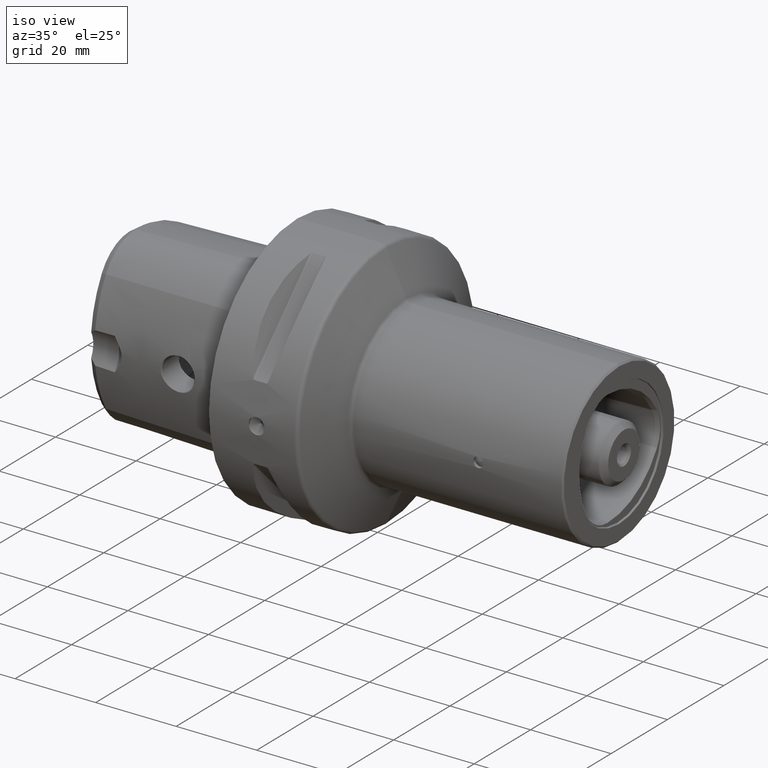
[diagram: clean part render]
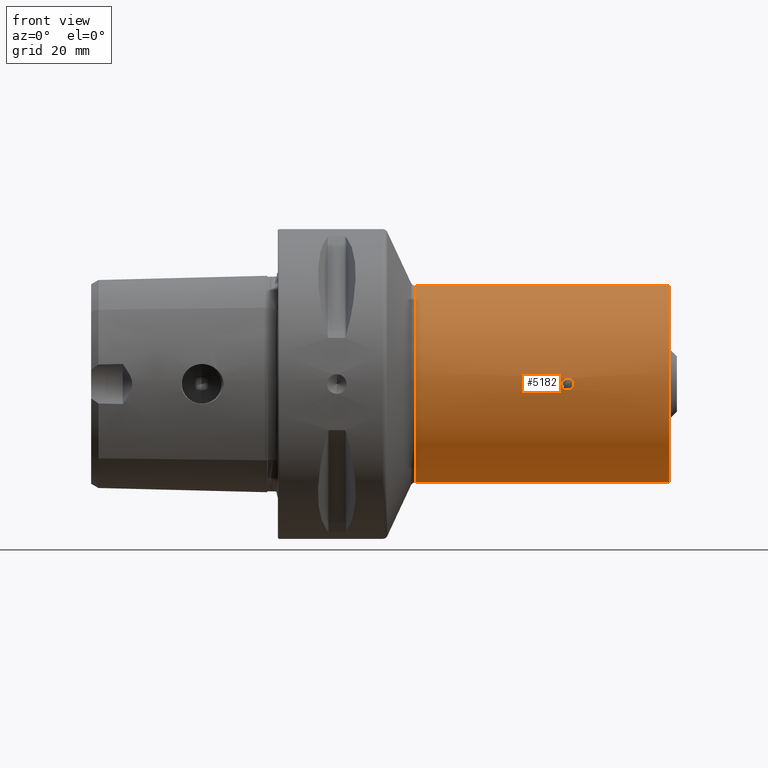
[diagram: tour spotlight — one face highlighted and labeled with its STEP entity id]
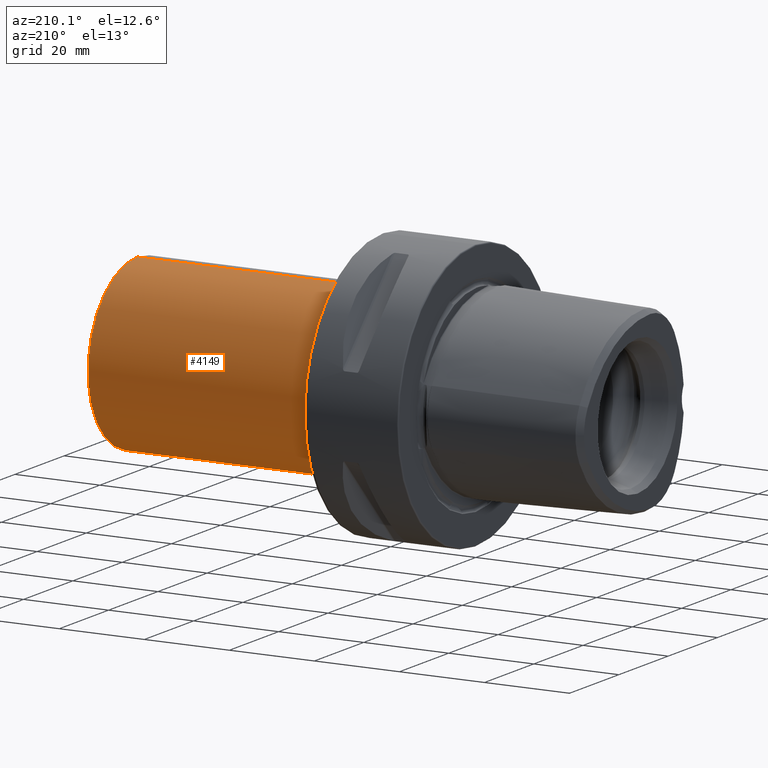
[diagram: tour spotlight — one face highlighted and labeled with its STEP entity id]
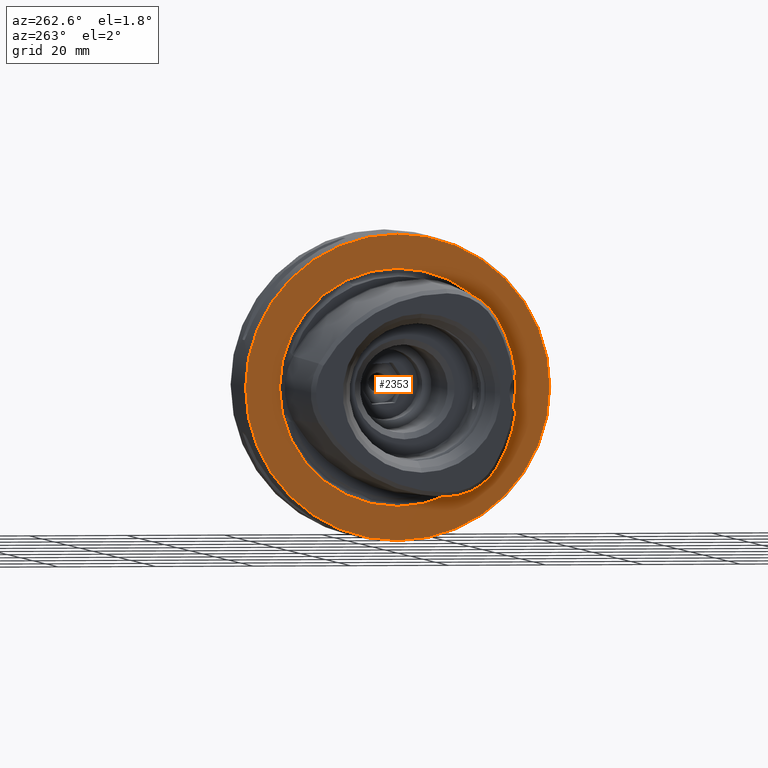
[diagram: tour spotlight — one face highlighted and labeled with its STEP entity id]
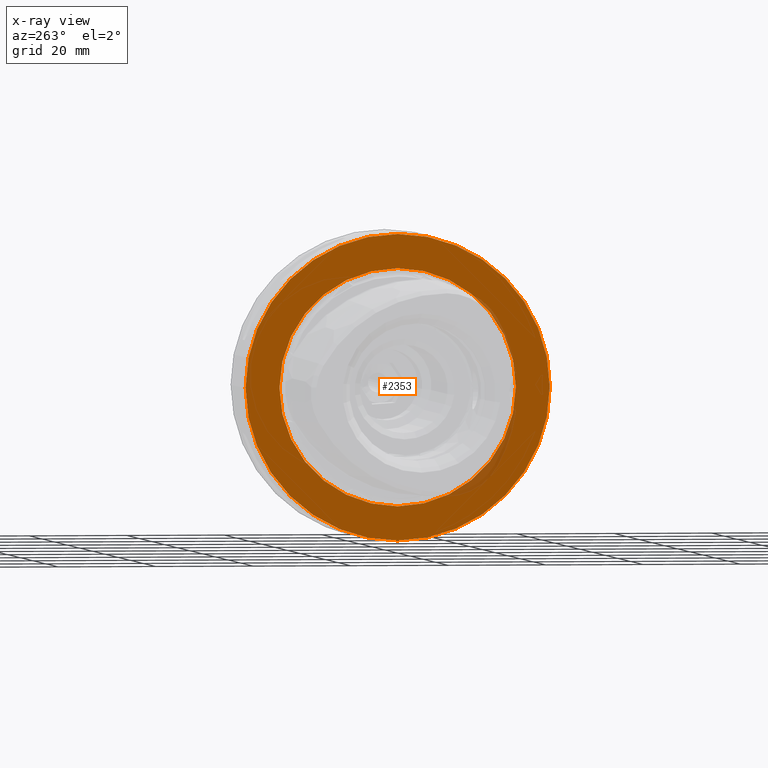
[diagram: x-ray of the same camera — body ghosted, this tour face saturated]
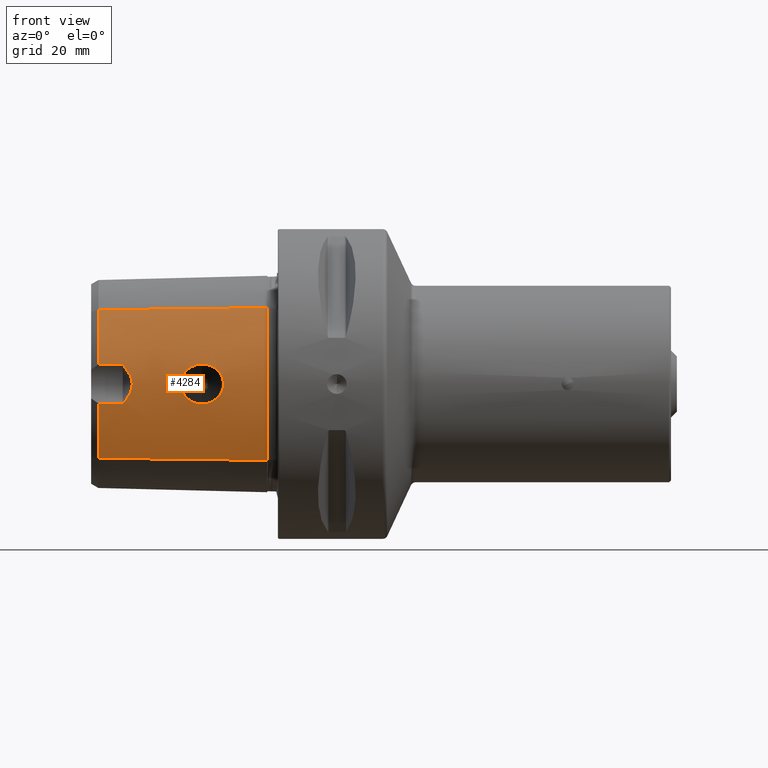
[diagram: tour spotlight — one face highlighted and labeled with its STEP entity id]
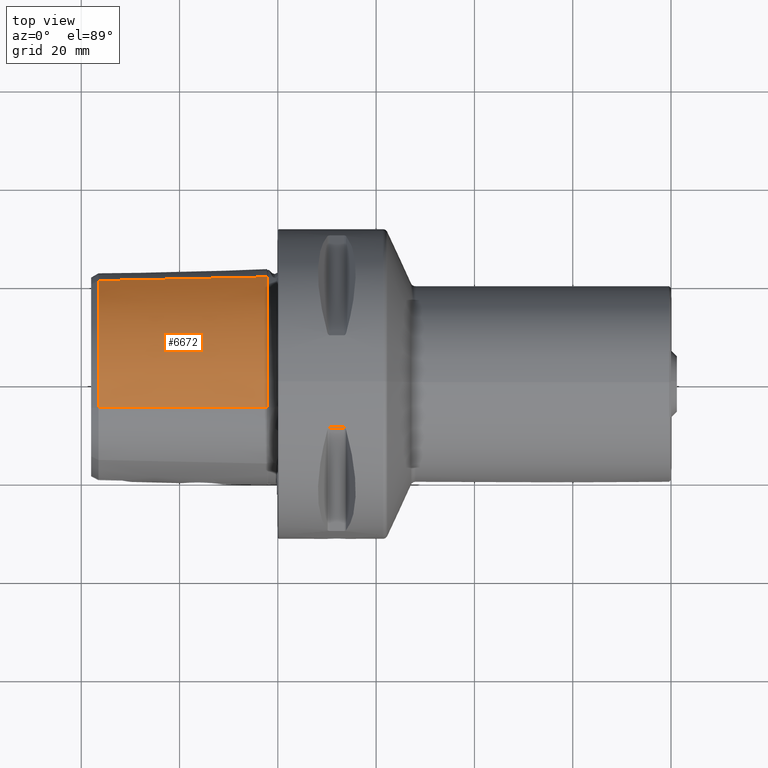
[diagram: tour spotlight — one face highlighted and labeled with its STEP entity id]
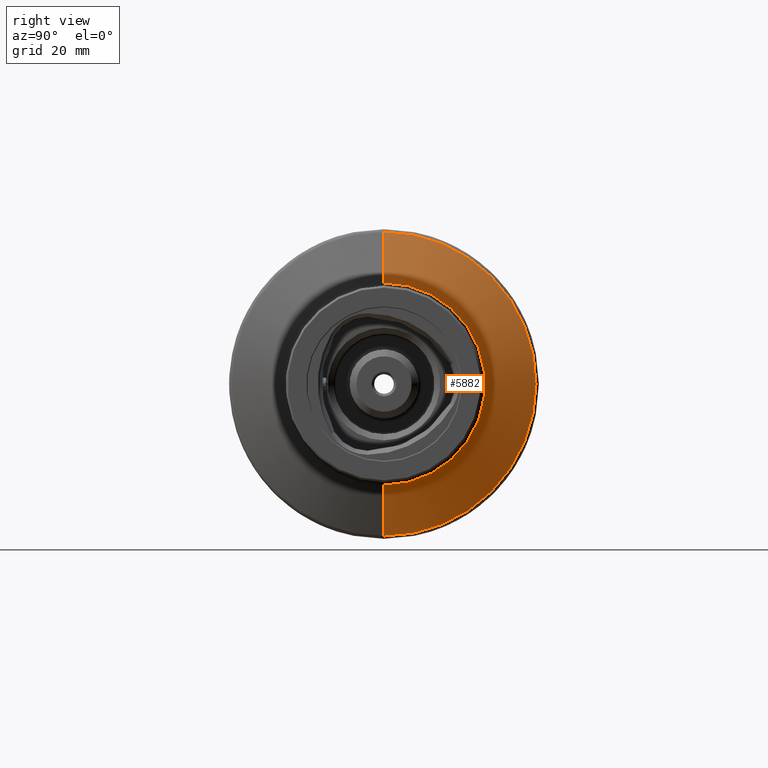
[diagram: tour spotlight — one face highlighted and labeled with its STEP entity id]
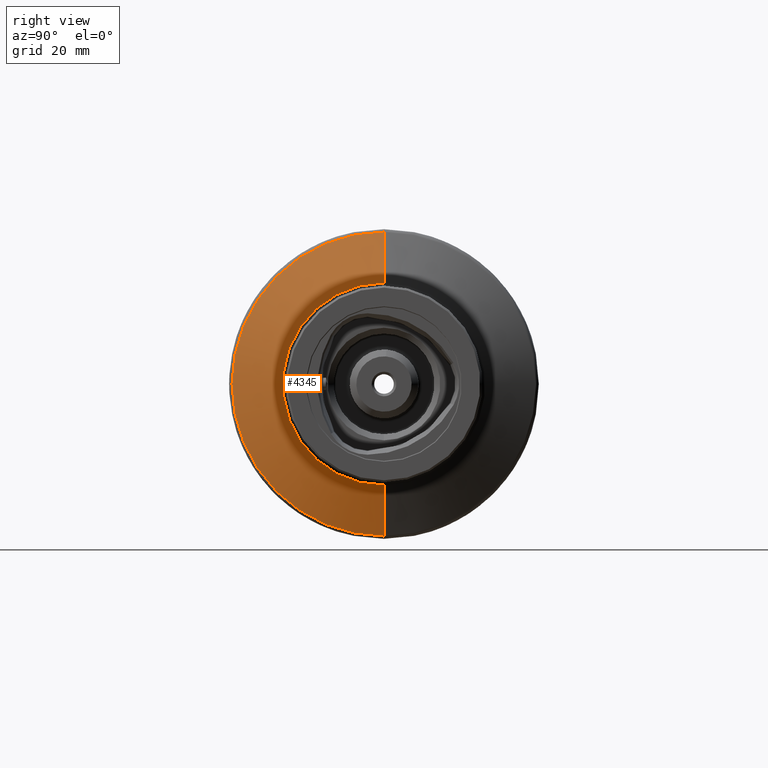
[diagram: tour spotlight — one face highlighted and labeled with its STEP entity id]
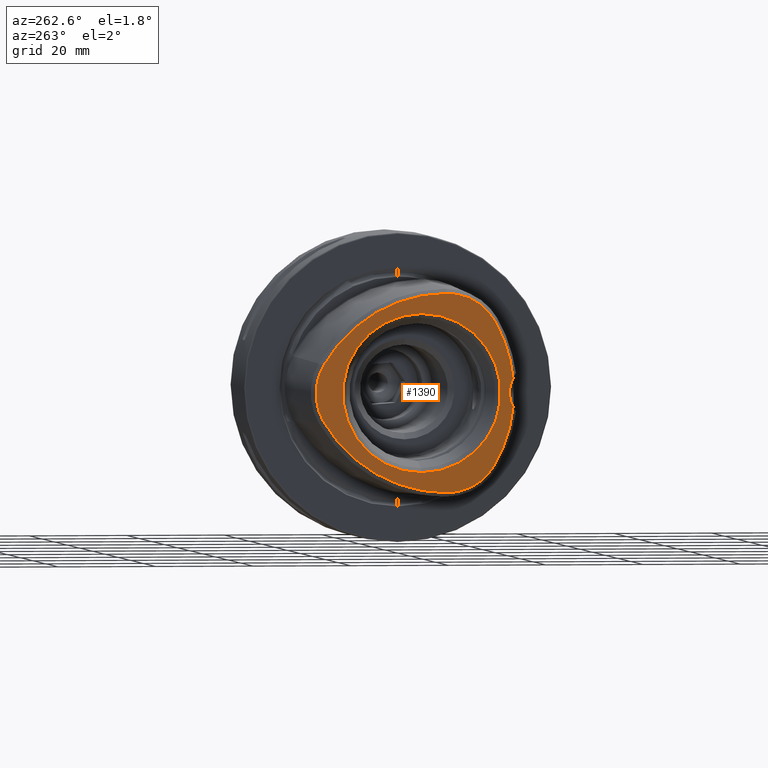
[diagram: tour spotlight — one face highlighted and labeled with its STEP entity id]
A machine part: a face-by-face anatomy tour. The part has 219 B-rep faces; the first image is the clean iso view, then the 8 largest visible faces are spotlighted one at a time (largest first), each with its STEP entity span.

Face 1 — front view, entity #5182. In plain terms, the highlighted cylindrical surface (partial cylindrical patch) has radius 20 mm, axis along (-1, -0, -0).
Definition (entity closure, byte-faithful):
#47 = CARTESIAN_POINT ( 'NONE',  ( 60.12375509256651900, -19.99248225017433000, -0.5535327915804774100 ) ) ;
#204 = FACE_OUTER_BOUND ( 'NONE', #2490, .T. ) ;
#206 = CARTESIAN_POINT ( 'NONE',  ( 58.67532878227127900, -19.96337885842806200, 1.209859882025466700 ) ) ;
#328 = CARTESIAN_POINT ( 'NONE',  ( 58.99999999999943200, -19.96089927833865100, 1.250000000007755800 ) ) ;
#508 = CARTESIAN_POINT ( 'NONE',  ( 60.08540315932160800, -19.99033657721186300, -0.6253492309727893800 ) ) ;
#710 = LINE ( 'NONE', #787, #1826 ) ;
#720 = CARTESIAN_POINT ( 'NONE',  ( 58.23123527712633800, -19.97536571469600700, -0.9990446147902674000 ) ) ;
#787 = CARTESIAN_POINT ( 'NONE',  ( 0.0000000000000000000, 2.449293598294706100E-015, -19.99999999999999600 ) ) ;
#1032 = CARTESIAN_POINT ( 'NONE',  ( 59.94213247239210300, -19.98303778933392400, -0.8255527861939828700 ) ) ;
#1103 = CARTESIAN_POINT ( 'NONE',  ( 59.62846146707666900, -19.97022400019489300, 1.092722690422757600 ) ) ;
#1228 = CYLINDRICAL_SURFACE ( 'NONE', #3424, 19.99999999999999600 ) ;
#1232 = EDGE_CURVE ( 'NONE', #4516, #3826, #3072, .T. ) ;
#1369 = CARTESIAN_POINT ( 'NONE',  ( 57.99925280305052400, -19.98563003330898300, 0.7669706926384751700 ) ) ;
#1446 = EDGE_CURVE ( 'NONE', #4516, #3830, #710, .T. ) ;
#1592 = DIRECTION ( 'NONE',  ( -1.000000000000000000, -0.0000000000000000000, -0.0000000000000000000 ) ) ;
#1651 = CARTESIAN_POINT ( 'NONE',  ( 59.99857963828355900, -19.98552951174066900, 0.7693480334859547100 ) ) ;
#1680 = CARTESIAN_POINT ( 'NONE',  ( 60.24986526891007100, -19.99999157930965800, 0.1659701774398715800 ) ) ;
#1736 = CARTESIAN_POINT ( 'NONE',  ( 59.00000000000000700, -19.96089927833913800, -1.250000000000001100 ) ) ;
#1826 = VECTOR ( 'NONE', #4588, 1000.000000000000000 ) ;
#1850 = CARTESIAN_POINT ( 'NONE',  ( 58.23260898155095300, -19.97530479995977300, 1.000424919907668200 ) ) ;
#1866 = CARTESIAN_POINT ( 'NONE',  ( 58.37019423085150300, -19.97025852652370400, 1.092118851443722800 ) ) ;
#1890 = CARTESIAN_POINT ( 'NONE',  ( 59.00000000000000700, -19.96089927833913800, -1.250000000000001100 ) ) ;
#2117 = CARTESIAN_POINT ( 'NONE',  ( 59.32929036433569100, -19.96304944363890100, -1.216787636646141900 ) ) ;
#2201 = CARTESIAN_POINT ( 'NONE',  ( 60.21717215561975000, -19.99787685070053600, 0.3283102293013609500 ) ) ;
#2234 = ORIENTED_EDGE ( 'NONE', *, *, #6356, .T. ) ;
#2289 = DIRECTION ( 'NONE',  ( -1.000000000000000000, -0.0000000000000000000, -0.0000000000000000000 ) ) ;
#2351 = ORIENTED_EDGE ( 'NONE', *, *, #4124, .T. ) ;
#2448 = CARTESIAN_POINT ( 'NONE',  ( 58.91840854741119000, -19.96089927833914100, 1.249999999999933400 ) ) ;
#2490 = EDGE_LOOP ( 'NONE', ( #3812, #4095, #2351, #5850 ) ) ;
#2552 = CIRCLE ( 'NONE', #5967, 19.99999999999999300 ) ;
#2649 = CARTESIAN_POINT ( 'NONE',  ( 79.60000000000000900, 0.0000000000000000000, 0.0000000000000000000 ) ) ;
#2651 = CARTESIAN_POINT ( 'NONE',  ( 59.00000000000000700, -19.96089927833913800, -1.250000000000001100 ) ) ;
#2661 = ORIENTED_EDGE ( 'NONE', *, *, #5473, .T. ) ;
#2677 = DIRECTION ( 'NONE',  ( 0.0000000000000000000, 0.0000000000000000000, 1.000000000000000000 ) ) ;
#2737 = CARTESIAN_POINT ( 'NONE',  ( 79.60000000000000900, 0.0000000000000000000, 19.99999999999999600 ) ) ;
#2847 = CARTESIAN_POINT ( 'NONE',  ( 27.99960832958999600, 0.0000000000000000000, 19.99999999999999300 ) ) ;
#2890 = CARTESIAN_POINT ( 'NONE',  ( 58.83554011313124500, -19.96141605948584900, 1.241823368827967800 ) ) ;
#2921 = CARTESIAN_POINT ( 'NONE',  ( 58.83477585713009700, -19.96089927833914100, -1.250000000000001300 ) ) ;
#2960 = VERTEX_POINT ( 'NONE', #1736 ) ;
#2961 = CARTESIAN_POINT ( 'NONE',  ( 58.00067265892235500, -19.98556707655159300, -0.7683971673888320100 ) ) ;
#3072 = CIRCLE ( 'NONE', #6838, 19.99999999999999600 ) ;
#3195 = CARTESIAN_POINT ( 'NONE',  ( 59.99486925566792200, -19.98562536644331200, -0.7611812156578199300 ) ) ;
#3273 = CARTESIAN_POINT ( 'NONE',  ( 60.21777831161672600, -19.99791409317756300, -0.3262088617008540000 ) ) ;
#3297 = CARTESIAN_POINT ( 'NONE',  ( 59.76795079918389300, -19.97533421499199200, 0.9996545706673102300 ) ) ;
#3424 = AXIS2_PLACEMENT_3D ( 'NONE', #3436, #2289, #6131 ) ;
#3436 = CARTESIAN_POINT ( 'NONE',  ( 0.0000000000000000000, 0.0000000000000000000, 0.0000000000000000000 ) ) ;
#3487 = B_SPLINE_CURVE_WITH_KNOTS ( 'NONE', 3,
 ( #4273, #6504, #5429, #1103, #3297, #1651, #4920, #2201, #1680, #5968, #3273, #47, #508, #3195, #1032, #4820, #5356, #2117, #5893, #2651 ),
 .UNSPECIFIED., .F., .F.,
 ( 4, 2, 2, 2, 2, 2, 2, 2, 2, 4 ),
 ( 0.003909022310767963300, 0.004397538130862198100, 0.004886053950956433000, 0.005374569771050666900, 0.005863085591144902600, 0.006351601411239136600, 0.006595859321286258800, 0.006840117231333379300, 0.007328633051427607200, 0.007817148871521835100 ),
 .UNSPECIFIED. ) ;
#3508 = CARTESIAN_POINT ( 'NONE',  ( 57.90758992275761600, -19.99067158763282800, 0.6292653796629638100 ) ) ;
#3667 = VECTOR ( 'NONE', #4550, 1000.000000000000000 ) ;
#3812 = ORIENTED_EDGE ( 'NONE', *, *, #1446, .F. ) ;
#3826 = VERTEX_POINT ( 'NONE', #2737 ) ;
#3828 = CARTESIAN_POINT ( 'NONE',  ( 79.60000000000000900, 2.449293598294706100E-015, -19.99999999999999600 ) ) ;
#3830 = VERTEX_POINT ( 'NONE', #5439 ) ;
#4095 = ORIENTED_EDGE ( 'NONE', *, *, #1232, .T. ) ;
#4124 = EDGE_CURVE ( 'NONE', #3826, #5365, #5457, .T. ) ;
#4273 = CARTESIAN_POINT ( 'NONE',  ( 58.99999999999943200, -19.96089927833865100, 1.250000000007755800 ) ) ;
#4516 = VERTEX_POINT ( 'NONE', #3828 ) ;
#4550 = DIRECTION ( 'NONE',  ( -1.000000000000000000, -0.0000000000000000000, -0.0000000000000000000 ) ) ;
#4571 = CARTESIAN_POINT ( 'NONE',  ( 57.78288467261293000, -19.99787481589258000, -0.3280916135973757100 ) ) ;
#4588 = DIRECTION ( 'NONE',  ( -1.000000000000000000, -0.0000000000000000000, -0.0000000000000000000 ) ) ;
#4609 = CARTESIAN_POINT ( 'NONE',  ( 57.78233271736962700, -19.99790749950899700, 0.3265288405556772700 ) ) ;
#4745 = VERTEX_POINT ( 'NONE', #328 ) ;
#4798 = DIRECTION ( 'NONE',  ( 0.0000000000000000000, 0.0000000000000000000, 1.000000000000000000 ) ) ;
#4820 = CARTESIAN_POINT ( 'NONE',  ( 59.76925297548203300, -19.97538467509286500, -0.9986760500908401500 ) ) ;
#4846 = CARTESIAN_POINT ( 'NONE',  ( 27.99960832958999600, 0.0000000000000000000, 0.0000000000000000000 ) ) ;
#4920 = CARTESIAN_POINT ( 'NONE',  ( 60.09159089690351900, -19.99062633249820900, 0.6306544036770841400 ) ) ;
#5072 = CARTESIAN_POINT ( 'NONE',  ( 57.75005841096687200, -19.99999634931479900, -0.1635501872876701000 ) ) ;
#5182 = ADVANCED_FACE ( 'NONE', ( #204, #5936 ), #1228, .T. ) ;
#5356 = CARTESIAN_POINT ( 'NONE',  ( 59.62997024114626000, -19.97027224275765500, -1.091852458901545500 ) ) ;
#5365 = VERTEX_POINT ( 'NONE', #2847 ) ;
#5429 = CARTESIAN_POINT ( 'NONE',  ( 59.32759492521626000, -19.96302084448612400, 1.217246178362235500 ) ) ;
#5439 = CARTESIAN_POINT ( 'NONE',  ( 27.99960832958999600, 2.449293598294705700E-015, -19.99999999999999300 ) ) ;
#5457 = LINE ( 'NONE', #6086, #3667 ) ;
#5473 = EDGE_CURVE ( 'NONE', #2960, #4745, #5695, .T. ) ;
#5625 = CARTESIAN_POINT ( 'NONE',  ( 58.99999999999943200, -19.96089927833865100, 1.250000000007755800 ) ) ;
#5652 = CARTESIAN_POINT ( 'NONE',  ( 58.36988647904148300, -19.97026889777759400, -1.091930598280378000 ) ) ;
#5695 = B_SPLINE_CURVE_WITH_KNOTS ( 'NONE', 3,
 ( #1890, #2921, #6669, #5652, #720, #2961, #6748, #4571, #5072, #6722, #4609, #3508, #1369, #1850, #1866, #6181, #206, #2890, #2448, #5625 ),
 .UNSPECIFIED., .F., .F.,
 ( 4, 2, 2, 2, 2, 2, 2, 2, 2, 4 ),
 ( 7.023086426956682200E-018, 0.0004886277888460040800, 0.0009772555776920010100, 0.001465883366537997900, 0.001954511155383995100, 0.002443138944229992000, 0.002931766733075988100, 0.003420394521921985400, 0.003664708416344974100, 0.003909022310767963300 ),
 .UNSPECIFIED. ) ;
#5850 = ORIENTED_EDGE ( 'NONE', *, *, #6949, .F. ) ;
#5893 = CARTESIAN_POINT ( 'NONE',  ( 59.16518628186103300, -19.96089927833912700, -1.250000000000000700 ) ) ;
#5936 = FACE_BOUND ( 'NONE', #6503, .T. ) ;
#5967 = AXIS2_PLACEMENT_3D ( 'NONE', #4846, #6431, #2677 ) ;
#5968 = CARTESIAN_POINT ( 'NONE',  ( 60.25013390228409100, -20.00000836888999000, -0.1639344887051899200 ) ) ;
#6086 = CARTESIAN_POINT ( 'NONE',  ( 0.0000000000000000000, 0.0000000000000000000, 19.99999999999999600 ) ) ;
#6131 = DIRECTION ( 'NONE',  ( 0.0000000000000000000, 0.0000000000000000000, 1.000000000000000000 ) ) ;
#6181 = CARTESIAN_POINT ( 'NONE',  ( 58.59739773216578800, -19.96481545528033100, 1.186225584392625900 ) ) ;
#6356 = EDGE_CURVE ( 'NONE', #4745, #2960, #3487, .T. ) ;
#6431 = DIRECTION ( 'NONE',  ( -1.000000000000000000, -0.0000000000000000000, -0.0000000000000000000 ) ) ;
#6503 = EDGE_LOOP ( 'NONE', ( #2661, #2234 ) ) ;
#6504 = CARTESIAN_POINT ( 'NONE',  ( 59.16314551191398900, -19.96089927833912400, 1.250000000000136800 ) ) ;
#6669 = CARTESIAN_POINT ( 'NONE',  ( 58.67264958014347800, -19.96300967032848600, -1.217455207954464700 ) ) ;
#6722 = CARTESIAN_POINT ( 'NONE',  ( 57.74994174890961300, -20.00000364069292000, 0.1626561054413699900 ) ) ;
#6748 = CARTESIAN_POINT ( 'NONE',  ( 57.90755269649829300, -19.99067453946660300, -0.6289457179640085500 ) ) ;
#6838 = AXIS2_PLACEMENT_3D ( 'NONE', #2649, #1592, #4798 ) ;
#6949 = EDGE_CURVE ( 'NONE', #3830, #5365, #2552, .T. ) ;

Face 2 — auxiliary view, entity #4149. In plain terms, the highlighted cylindrical surface (partial cylindrical patch) has radius 20 mm, axis along (-1, -0, -0).
Definition (entity closure, byte-faithful):
#311 = AXIS2_PLACEMENT_3D ( 'NONE', #3275, #1105, #3175 ) ;
#357 = DIRECTION ( 'NONE',  ( 0.0000000000000000000, 0.0000000000000000000, 1.000000000000000000 ) ) ;
#441 = DIRECTION ( 'NONE',  ( -1.000000000000000000, -0.0000000000000000000, -0.0000000000000000000 ) ) ;
#611 = DIRECTION ( 'NONE',  ( -1.000000000000000000, -0.0000000000000000000, -0.0000000000000000000 ) ) ;
#710 = LINE ( 'NONE', #787, #1826 ) ;
#787 = CARTESIAN_POINT ( 'NONE',  ( 0.0000000000000000000, 2.449293598294706100E-015, -19.99999999999999600 ) ) ;
#911 = DIRECTION ( 'NONE',  ( 0.0000000000000000000, 0.0000000000000000000, 1.000000000000000000 ) ) ;
#1105 = DIRECTION ( 'NONE',  ( -1.000000000000000000, -0.0000000000000000000, -0.0000000000000000000 ) ) ;
#1128 = CIRCLE ( 'NONE', #311, 19.99999999999999600 ) ;
#1160 = ORIENTED_EDGE ( 'NONE', *, *, #6868, .F. ) ;
#1446 = EDGE_CURVE ( 'NONE', #4516, #3830, #710, .T. ) ;
#1826 = VECTOR ( 'NONE', #4588, 1000.000000000000000 ) ;
#1942 = ORIENTED_EDGE ( 'NONE', *, *, #6920, .T. ) ;
#2005 = CARTESIAN_POINT ( 'NONE',  ( 27.99960832958999600, 0.0000000000000000000, 0.0000000000000000000 ) ) ;
#2249 = ORIENTED_EDGE ( 'NONE', *, *, #1446, .T. ) ;
#2498 = CYLINDRICAL_SURFACE ( 'NONE', #2866, 19.99999999999999600 ) ;
#2737 = CARTESIAN_POINT ( 'NONE',  ( 79.60000000000000900, 0.0000000000000000000, 19.99999999999999600 ) ) ;
#2847 = CARTESIAN_POINT ( 'NONE',  ( 27.99960832958999600, 0.0000000000000000000, 19.99999999999999300 ) ) ;
#2866 = AXIS2_PLACEMENT_3D ( 'NONE', #4736, #611, #357 ) ;
#3175 = DIRECTION ( 'NONE',  ( 0.0000000000000000000, 0.0000000000000000000, 1.000000000000000000 ) ) ;
#3275 = CARTESIAN_POINT ( 'NONE',  ( 79.60000000000000900, 0.0000000000000000000, 0.0000000000000000000 ) ) ;
#3415 = EDGE_LOOP ( 'NONE', ( #1942, #2249, #1160, #5504 ) ) ;
#3434 = AXIS2_PLACEMENT_3D ( 'NONE', #2005, #441, #911 ) ;
#3667 = VECTOR ( 'NONE', #4550, 1000.000000000000000 ) ;
#3826 = VERTEX_POINT ( 'NONE', #2737 ) ;
#3828 = CARTESIAN_POINT ( 'NONE',  ( 79.60000000000000900, 2.449293598294706100E-015, -19.99999999999999600 ) ) ;
#3830 = VERTEX_POINT ( 'NONE', #5439 ) ;
#4124 = EDGE_CURVE ( 'NONE', #3826, #5365, #5457, .T. ) ;
#4149 = ADVANCED_FACE ( 'NONE', ( #6289 ), #2498, .T. ) ;
#4516 = VERTEX_POINT ( 'NONE', #3828 ) ;
#4550 = DIRECTION ( 'NONE',  ( -1.000000000000000000, -0.0000000000000000000, -0.0000000000000000000 ) ) ;
#4588 = DIRECTION ( 'NONE',  ( -1.000000000000000000, -0.0000000000000000000, -0.0000000000000000000 ) ) ;
#4736 = CARTESIAN_POINT ( 'NONE',  ( 0.0000000000000000000, 0.0000000000000000000, 0.0000000000000000000 ) ) ;
#5365 = VERTEX_POINT ( 'NONE', #2847 ) ;
#5439 = CARTESIAN_POINT ( 'NONE',  ( 27.99960832958999600, 2.449293598294705700E-015, -19.99999999999999300 ) ) ;
#5457 = LINE ( 'NONE', #6086, #3667 ) ;
#5504 = ORIENTED_EDGE ( 'NONE', *, *, #4124, .F. ) ;
#6086 = CARTESIAN_POINT ( 'NONE',  ( 0.0000000000000000000, 0.0000000000000000000, 19.99999999999999600 ) ) ;
#6114 = CIRCLE ( 'NONE', #3434, 19.99999999999999300 ) ;
#6289 = FACE_OUTER_BOUND ( 'NONE', #3415, .T. ) ;
#6868 = EDGE_CURVE ( 'NONE', #5365, #3830, #6114, .T. ) ;
#6920 = EDGE_CURVE ( 'NONE', #3826, #4516, #1128, .T. ) ;

Face 3 — auxiliary view, entity #2353. An x-ray twin of the same camera follows (body ghosted, this face saturated) — the face is partly hidden behind the body. In plain terms, the highlighted planar face has unit normal (1, 0, 0).
Definition (entity closure, byte-faithful):
#156 = EDGE_CURVE ( 'NONE', #6552, #3096, #6734, .T. ) ;
#503 = AXIS2_PLACEMENT_3D ( 'NONE', #3226, #5337, #4942 ) ;
#647 = DIRECTION ( 'NONE',  ( 0.0000000000000000000, 0.0000000000000000000, -1.000000000000000000 ) ) ;
#761 = CARTESIAN_POINT ( 'NONE',  ( 0.0000000000000000000, 2.969768487932331700E-015, -24.25000000000000000 ) ) ;
#792 = AXIS2_PLACEMENT_3D ( 'NONE', #3977, #2303, #2835 ) ;
#855 = VERTEX_POINT ( 'NONE', #1470 ) ;
#1041 = EDGE_LOOP ( 'NONE', ( #1518, #1974 ) ) ;
#1279 = EDGE_LOOP ( 'NONE', ( #4605, #4696 ) ) ;
#1295 = AXIS2_PLACEMENT_3D ( 'NONE', #4410, #6182, #2945 ) ;
#1470 = CARTESIAN_POINT ( 'NONE',  ( 0.0000000000000000000, 0.0000000000000000000, 24.25000000000000000 ) ) ;
#1499 = VERTEX_POINT ( 'NONE', #761 ) ;
#1518 = ORIENTED_EDGE ( 'NONE', *, *, #4663, .T. ) ;
#1929 = EDGE_CURVE ( 'NONE', #855, #1499, #5904, .T. ) ;
#1974 = ORIENTED_EDGE ( 'NONE', *, *, #156, .T. ) ;
#2303 = DIRECTION ( 'NONE',  ( -1.000000000000000000, -0.0000000000000000000, -0.0000000000000000000 ) ) ;
#2353 = ADVANCED_FACE ( 'NONE', ( #6984, #4482 ), #5985, .F. ) ;
#2835 = DIRECTION ( 'NONE',  ( 0.0000000000000000000, 0.0000000000000000000, 1.000000000000000000 ) ) ;
#2945 = DIRECTION ( 'NONE',  ( 0.0000000000000000000, 0.0000000000000000000, 1.000000000000000000 ) ) ;
#3096 = VERTEX_POINT ( 'NONE', #6247 ) ;
#3120 = AXIS2_PLACEMENT_3D ( 'NONE', #3760, #3902, #647 ) ;
#3226 = CARTESIAN_POINT ( 'NONE',  ( 0.0000000000000000000, 0.0000000000000000000, 0.0000000000000000000 ) ) ;
#3760 = CARTESIAN_POINT ( 'NONE',  ( 0.0000000000000000000, 24.25000000000000000, 0.0000000000000000000 ) ) ;
#3902 = DIRECTION ( 'NONE',  ( 1.000000000000000000, 0.0000000000000000000, 0.0000000000000000000 ) ) ;
#3977 = CARTESIAN_POINT ( 'NONE',  ( 0.0000000000000000000, 0.0000000000000000000, 0.0000000000000000000 ) ) ;
#4021 = CIRCLE ( 'NONE', #792, 31.19999999999999900 ) ;
#4151 = CARTESIAN_POINT ( 'NONE',  ( 0.0000000000000000000, 0.0000000000000000000, 0.0000000000000000000 ) ) ;
#4392 = CARTESIAN_POINT ( 'NONE',  ( 0.0000000000000000000, 3.839267715326952300E-015, -31.19999999999999900 ) ) ;
#4410 = CARTESIAN_POINT ( 'NONE',  ( 0.0000000000000000000, 0.0000000000000000000, 0.0000000000000000000 ) ) ;
#4482 = FACE_OUTER_BOUND ( 'NONE', #1041, .T. ) ;
#4605 = ORIENTED_EDGE ( 'NONE', *, *, #1929, .F. ) ;
#4663 = EDGE_CURVE ( 'NONE', #3096, #6552, #4021, .T. ) ;
#4696 = ORIENTED_EDGE ( 'NONE', *, *, #6799, .F. ) ;
#4942 = DIRECTION ( 'NONE',  ( 0.0000000000000000000, 0.0000000000000000000, 1.000000000000000000 ) ) ;
#5242 = DIRECTION ( 'NONE',  ( -1.000000000000000000, -0.0000000000000000000, -0.0000000000000000000 ) ) ;
#5337 = DIRECTION ( 'NONE',  ( -1.000000000000000000, -0.0000000000000000000, -0.0000000000000000000 ) ) ;
#5904 = CIRCLE ( 'NONE', #1295, 24.25000000000000000 ) ;
#5985 = PLANE ( 'NONE',  #3120 ) ;
#6101 = AXIS2_PLACEMENT_3D ( 'NONE', #4151, #5242, #6909 ) ;
#6182 = DIRECTION ( 'NONE',  ( -1.000000000000000000, -0.0000000000000000000, -0.0000000000000000000 ) ) ;
#6247 = CARTESIAN_POINT ( 'NONE',  ( 0.0000000000000000000, 0.0000000000000000000, 31.19999999999999900 ) ) ;
#6533 = CIRCLE ( 'NONE', #6101, 24.25000000000000000 ) ;
#6552 = VERTEX_POINT ( 'NONE', #4392 ) ;
#6734 = CIRCLE ( 'NONE', #503, 31.19999999999999900 ) ;
#6799 = EDGE_CURVE ( 'NONE', #1499, #855, #6533, .T. ) ;
#6909 = DIRECTION ( 'NONE',  ( 0.0000000000000000000, 0.0000000000000000000, 1.000000000000000000 ) ) ;
#6984 = FACE_BOUND ( 'NONE', #1279, .T. ) ;

Face 4 — front view, entity #4284. In plain terms, the highlighted conical surface has half-angle 1.439 deg.
Definition (entity closure, byte-faithful):
#17 = VERTEX_POINT ( 'NONE', #320 ) ;
#137 = CARTESIAN_POINT ( 'NONE',  ( -16.03990755891391700, -20.00671868468379000, 4.031911298617750100 ) ) ;
#160 = EDGE_CURVE ( 'NONE', #337, #930, #305, .T. ) ;
#258 = ORIENTED_EDGE ( 'NONE', *, *, #322, .T. ) ;
#266 = CARTESIAN_POINT ( 'NONE',  ( -15.50000000000000000, -20.01558181074209100, -4.067825830440962200 ) ) ;
#280 = CARTESIAN_POINT ( 'NONE',  ( -12.85183713305453800, -20.17484076368777600, 3.306449771520420200 ) ) ;
#284 = EDGE_CURVE ( 'NONE', #1143, #3733, #5900, .T. ) ;
#305 = CIRCLE ( 'NONE', #368, 30.20810565747711600 ) ;
#308 = CARTESIAN_POINT ( 'NONE',  ( -11.20220236434483100, -20.37548965978136200, 1.101072521542447700 ) ) ;
#320 = CARTESIAN_POINT ( 'NONE',  ( -2.200000000000000200, -16.45752937597906000, -15.53492052287963300 ) ) ;
#322 = EDGE_CURVE ( 'NONE', #5141, #17, #5381, .T. ) ;
#327 = CARTESIAN_POINT ( 'NONE',  ( -13.33235956089440300, -20.13091851112767500, 3.588497538188175200 ) ) ;
#337 = VERTEX_POINT ( 'NONE', #4715 ) ;
#351 = CARTESIAN_POINT ( 'NONE',  ( -36.50000000000000000, -15.71124463838673100, -15.10405282873859200 ) ) ;
#368 = AXIS2_PLACEMENT_3D ( 'NONE', #4395, #1637, #5418 ) ;
#394 = CARTESIAN_POINT ( 'NONE',  ( -31.55000000000000100, -19.60626329048313100, 4.085961053099246100 ) ) ;
#411 = CARTESIAN_POINT ( 'NONE',  ( -29.61893089776425500, -19.93121964214677900, 0.1959775314001992500 ) ) ;
#414 = CARTESIAN_POINT ( 'NONE',  ( -34.85002376549045500, -19.53333882614018100, 4.006490134604749000 ) ) ;
#417 = AXIS2_PLACEMENT_3D ( 'NONE', #2267, #5983, #646 ) ;
#493 = CARTESIAN_POINT ( 'NONE',  ( -15.50000000000000000, -20.01558181074209100, -4.067825830440962200 ) ) ;
#617 = EDGE_CURVE ( 'NONE', #17, #5664, #4967, .T. ) ;
#644 = CARTESIAN_POINT ( 'NONE',  ( -18.82477275656478000, -20.10082058050806000, 2.503299086531793900 ) ) ;
#646 = DIRECTION ( 'NONE',  ( 0.0000000000000000000, 0.0000000000000000000, 1.000000000000000000 ) ) ;
#666 = CARTESIAN_POINT ( 'NONE',  ( -19.28480521920542800, -20.13788052959616300, -1.818130855018251800 ) ) ;
#669 = LINE ( 'NONE', #1083, #7002 ) ;
#732 = CARTESIAN_POINT ( 'NONE',  ( -15.50000000000000000, -20.01558181074209500, 4.067825830440965800 ) ) ;
#738 = CARTESIAN_POINT ( 'NONE',  ( -16.83125134815061900, -20.01056924476610600, 3.848087738726931700 ) ) ;
#746 = CARTESIAN_POINT ( 'NONE',  ( -36.50000000000000000, -15.71124463838673100, -15.10405282873859200 ) ) ;
#823 = CARTESIAN_POINT ( 'NONE',  ( -14.93805343479709100, -20.03161220316332000, -4.054673259712155100 ) ) ;
#862 = CARTESIAN_POINT ( 'NONE',  ( -12.20338739177706500, -20.24460912616552100, 2.769988190103395400 ) ) ;
#891 = FACE_BOUND ( 'NONE', #4328, .T. ) ;
#915 = CARTESIAN_POINT ( 'NONE',  ( -34.85002376549046900, -19.53333882614018400, -4.006490134604751700 ) ) ;
#930 = VERTEX_POINT ( 'NONE', #6374 ) ;
#950 = CARTESIAN_POINT ( 'NONE',  ( -31.08013044221502200, -19.69598600384553300, -3.480066866938984000 ) ) ;
#955 = CARTESIAN_POINT ( 'NONE',  ( -33.20002244574542500, -19.56976341227230200, 4.046711815844236800 ) ) ;
#966 = CARTESIAN_POINT ( 'NONE',  ( -31.55000000000000100, -19.60626329048292100, -4.085961053099016900 ) ) ;
#997 = ORIENTED_EDGE ( 'NONE', *, *, #160, .F. ) ;
#1029 = VERTEX_POINT ( 'NONE', #493 ) ;
#1083 = CARTESIAN_POINT ( 'NONE',  ( -36.50000000000000000, -15.71124463838674500, 15.10405282873856300 ) ) ;
#1143 = VERTEX_POINT ( 'NONE', #4385 ) ;
#1303 = EDGE_LOOP ( 'NONE', ( #4782, #4127, #6769, #258, #5622, #2227, #997, #6300 ) ) ;
#1377 = CARTESIAN_POINT ( 'NONE',  ( -16.57117534648447000, -20.00722009070947000, -3.925033237200246100 ) ) ;
#1396 = CARTESIAN_POINT ( 'NONE',  ( -11.08987930950936400, -20.39187093305313400, -0.5662841812392407400 ) ) ;
#1419 = CARTESIAN_POINT ( 'NONE',  ( -14.38699921426059800, -20.05727474125647100, 3.965709462241098200 ) ) ;
#1452 = AXIS2_PLACEMENT_3D ( 'NONE', #6765, #1999, #3619 ) ;
#1497 = DIRECTION ( 'NONE',  ( 0.0000000000000000000, 0.0000000000000000000, -1.000000000000000000 ) ) ;
#1501 = CARTESIAN_POINT ( 'NONE',  ( -31.55000000000000100, -19.60626329048313100, 4.085961053099246100 ) ) ;
#1541 = CARTESIAN_POINT ( 'NONE',  ( -29.63560204351271600, -19.92889133044634400, 0.3916473236860841800 ) ) ;
#1637 = DIRECTION ( 'NONE',  ( -1.000000000000000000, 0.0000000000000000000, 0.0000000000000000000 ) ) ;
#1767 = EDGE_CURVE ( 'NONE', #930, #5664, #669, .T. ) ;
#1771 = CARTESIAN_POINT ( 'NONE',  ( -15.50000000000000000, -20.01558181074209100, -4.067825830440962200 ) ) ;
#1774 = CARTESIAN_POINT ( 'NONE',  ( -18.64643160315062400, -20.08794205413674000, 2.704452376762753700 ) ) ;
#1837 = B_SPLINE_CURVE_WITH_KNOTS ( 'NONE', 3,
 ( #1771, #6680, #823, #3518, #6211, #1875, #2414, #5156, #5670, #6230, #4112, #2503, #3582, #2454, #6816, #4621, #1396, #2991, #5119, #6795, #4666, #308, #2968, #5735, #5175, #3032, #862, #5659, #280, #327, #4059, #4083, #1419, #6772, #1899, #6265 ),
 .UNSPECIFIED., .F., .F.,
 ( 4, 2, 2, 2, 2, 2, 2, 2, 2, 2, 2, 2, 2, 2, 2, 2, 2, 4 ),
 ( 0.003583389187051435300, 0.004422922341483045100, 0.005262455495914654900, 0.006101988650346264700, 0.006941521804777874500, 0.007781054959209484300, 0.008620588113641095000, 0.009460121268072704800, 0.009879887845288509700, 0.01029965442250431500, 0.01113918757693592400, 0.01197872073136753400, 0.01281825388579914400, 0.01365778704023075400, 0.01449732019466236400, 0.01533685334909397300, 0.01617638650352558300, 0.01701591965795719300 ),
 .UNSPECIFIED. ) ;
#1842 = CARTESIAN_POINT ( 'NONE',  ( -17.33553766752739000, -20.02242923183266400, 3.647920140685034300 ) ) ;
#1875 = CARTESIAN_POINT ( 'NONE',  ( -13.59068196365503000, -20.10984588747939800, -3.708750383312392700 ) ) ;
#1899 = CARTESIAN_POINT ( 'NONE',  ( -15.21864713927635100, -20.02187307663511400, 4.074117096333981900 ) ) ;
#1989 = CONICAL_SURFACE ( 'NONE', #4785, 30.20810565747711600, 0.02511819681827833300 ) ;
#1999 = DIRECTION ( 'NONE',  ( -1.000000000000000000, 0.0000000000000000000, 0.0000000000000000000 ) ) ;
#2002 = CIRCLE ( 'NONE', #417, 30.20810565747711600 ) ;
#2008 = CARTESIAN_POINT ( 'NONE',  ( -33.20002244574543900, -19.56976341227230200, -4.046711815844236800 ) ) ;
#2012 = CARTESIAN_POINT ( 'NONE',  ( -36.50000000000000000, 10.44974226119285800, 0.0000000000000000000 ) ) ;
#2110 = CARTESIAN_POINT ( 'NONE',  ( -29.91552217932742900, -19.88853176132694900, 1.508416832115263100 ) ) ;
#2121 = DIRECTION ( 'NONE',  ( 0.9996845546799859600, -0.02175070920013002700, 0.01255777781176029400 ) ) ;
#2133 = CARTESIAN_POINT ( 'NONE',  ( -31.08211070651362500, -19.69561416034374100, 3.482616099450381000 ) ) ;
#2227 = ORIENTED_EDGE ( 'NONE', *, *, #1767, .F. ) ;
#2267 = CARTESIAN_POINT ( 'NONE',  ( -36.50000000000000000, 10.44974226119285800, 0.0000000000000000000 ) ) ;
#2282 = CARTESIAN_POINT ( 'NONE',  ( -19.73235699593305300, -20.17968419403247900, -0.2628320055069768300 ) ) ;
#2307 = CARTESIAN_POINT ( 'NONE',  ( -18.25061673534426600, -20.06306215350195600, 3.072914941863728300 ) ) ;
#2371 = CARTESIAN_POINT ( 'NONE',  ( -15.50000000000000000, -20.01558181074209500, 4.067825830440965800 ) ) ;
#2414 = CARTESIAN_POINT ( 'NONE',  ( -13.33311125092423300, -20.13085498518907500, -3.588874027355295900 ) ) ;
#2418 = CARTESIAN_POINT ( 'NONE',  ( -18.83011265450350900, -20.10121249024589200, -2.497005995242023200 ) ) ;
#2454 = CARTESIAN_POINT ( 'NONE',  ( -11.29706051338035500, -20.36181794249068800, -1.377715445946421800 ) ) ;
#2503 = CARTESIAN_POINT ( 'NONE',  ( -11.68061704387135100, -20.30943803019066300, -2.124461454895141300 ) ) ;
#2525 = CARTESIAN_POINT ( 'NONE',  ( -36.50000000000000700, -19.49698961320221400, -3.965210896836545400 ) ) ;
#2620 = CARTESIAN_POINT ( 'NONE',  ( -31.31219636772490500, -19.65294119416483600, 3.786953950769110100 ) ) ;
#2711 = EDGE_CURVE ( 'NONE', #5141, #3733, #2002, .T. ) ;
#2809 = CARTESIAN_POINT ( 'NONE',  ( -19.58981690237816400, -20.16576566407836100, -1.067243324284521600 ) ) ;
#2935 = CARTESIAN_POINT ( 'NONE',  ( -18.25183585591905500, -20.06313103316690800, -3.071943561266545800 ) ) ;
#2968 = CARTESIAN_POINT ( 'NONE',  ( -11.29432310995223800, -20.36221029225330200, 1.370121969510595700 ) ) ;
#2991 = CARTESIAN_POINT ( 'NONE',  ( -11.05831077673141600, -20.39652331555491600, -0.2874234027739900300 ) ) ;
#3032 = CARTESIAN_POINT ( 'NONE',  ( -12.01381519475427800, -20.26737900212463800, 2.565916265305729900 ) ) ;
#3152 = EDGE_CURVE ( 'NONE', #337, #4944, #6821, .T. ) ;
#3163 = CARTESIAN_POINT ( 'NONE',  ( -29.61840985458777100, -19.93129272536415200, -0.3825028472742200700 ) ) ;
#3340 = CARTESIAN_POINT ( 'NONE',  ( -19.70189499464212100, -20.17662414797001700, 0.5488926560222788800 ) ) ;
#3368 = CARTESIAN_POINT ( 'NONE',  ( -19.50559329881598800, -20.15771140817266300, -1.323689406104958700 ) ) ;
#3404 = CARTESIAN_POINT ( 'NONE',  ( -19.73139268109002800, -20.17958841999771700, 0.2764629704913974000 ) ) ;
#3518 = CARTESIAN_POINT ( 'NONE',  ( -14.38506385365675500, -20.05736903566786800, -3.965364345249492200 ) ) ;
#3582 = CARTESIAN_POINT ( 'NONE',  ( -11.53618511782906400, -20.32880813507091100, -1.886967603015589700 ) ) ;
#3619 = DIRECTION ( 'NONE',  ( 0.0000000000000000000, 0.0000000000000000000, 1.000000000000000000 ) ) ;
#3635 = CARTESIAN_POINT ( 'NONE',  ( -29.74366197474770200, -19.91354576393196800, 0.9581856107628155000 ) ) ;
#3707 = CARTESIAN_POINT ( 'NONE',  ( -29.91270124884780700, -19.88895277286732400, -1.502382711341446300 ) ) ;
#3730 = CARTESIAN_POINT ( 'NONE',  ( -2.200000000000000200, -16.45752937597907100, 15.53492052287960400 ) ) ;
#3733 = VERTEX_POINT ( 'NONE', #5272 ) ;
#3901 = CARTESIAN_POINT ( 'NONE',  ( -16.56832575708649100, -20.00721526778487200, 3.925623573396723700 ) ) ;
#3981 = CARTESIAN_POINT ( 'NONE',  ( -15.77189266345004800, -20.00950208212044100, 4.061746101819311500 ) ) ;
#3997 = B_SPLINE_CURVE_WITH_KNOTS ( 'NONE', 3,
 ( #2371, #3981, #137, #3901, #738, #1842, #5032, #5571, #2307, #1774, #644, #5516, #4444, #6642, #4537, #3340, #3404, #2282, #6052, #2809, #3368, #666, #4472, #2418, #6174, #2935, #6711, #4628, #6193, #6215, #1377, #5101, #5675, #266 ),
 .UNSPECIFIED., .F., .F.,
 ( 4, 2, 2, 2, 2, 2, 2, 2, 2, 2, 2, 2, 2, 2, 2, 2, 4 ),
 ( 0.01701591965795719300, 0.01782722438336829500, 0.01863852910877939600, 0.01944983383419050100, 0.02026113855960160300, 0.02107244328501270400, 0.02188374801042380600, 0.02269505273583490700, 0.02350635746124601200, 0.02431766218665711400, 0.02512896691206821500, 0.02594027163747931700, 0.02675157636289041800, 0.02756288108830151600, 0.02837418581371262100, 0.02918549053912371900, 0.02999679526453482100 ),
 .UNSPECIFIED. ) ;
#4012 = VERTEX_POINT ( 'NONE', #732 ) ;
#4059 = CARTESIAN_POINT ( 'NONE',  ( -13.58500671924233100, -20.11026446749737300, 3.706514921139819800 ) ) ;
#4083 = CARTESIAN_POINT ( 'NONE',  ( -14.11534299966050400, -20.07321628345833600, 3.896296051936400100 ) ) ;
#4109 = VECTOR ( 'NONE', #4688, 1000.000000000000100 ) ;
#4112 = CARTESIAN_POINT ( 'NONE',  ( -12.01567790759864700, -20.26715881201893800, -2.567779724514605500 ) ) ;
#4127 = ORIENTED_EDGE ( 'NONE', *, *, #284, .T. ) ;
#4199 = CARTESIAN_POINT ( 'NONE',  ( -30.43545625641107600, -19.80749758285105600, -2.524190569235552400 ) ) ;
#4284 = ADVANCED_FACE ( 'NONE', ( #891, #5377 ), #1989, .T. ) ;
#4299 = CARTESIAN_POINT ( 'NONE',  ( -30.64219249647467100, -19.77319654651089600, -2.849143056477194200 ) ) ;
#4308 = CARTESIAN_POINT ( 'NONE',  ( -31.55000000000000100, -19.60626329048313100, 4.085961053099246100 ) ) ;
#4328 = EDGE_LOOP ( 'NONE', ( #5241, #5173 ) ) ;
#4385 = CARTESIAN_POINT ( 'NONE',  ( -31.55000000000000100, -19.60626329048292100, -4.085961053099016900 ) ) ;
#4395 = CARTESIAN_POINT ( 'NONE',  ( -36.50000000000000000, 10.44974226119285800, 0.0000000000000000000 ) ) ;
#4444 = CARTESIAN_POINT ( 'NONE',  ( -19.27968374595064200, -20.13743590859717300, 1.827582748538350200 ) ) ;
#4472 = CARTESIAN_POINT ( 'NONE',  ( -19.14721510860609800, -20.12603594292767200, -2.056534378413924700 ) ) ;
#4537 = CARTESIAN_POINT ( 'NONE',  ( -19.58604289283816900, -20.16540468991801300, 1.080135560904322200 ) ) ;
#4621 = CARTESIAN_POINT ( 'NONE',  ( -11.11325130557269800, -20.38843448479515200, -0.7038632583714751200 ) ) ;
#4628 = CARTESIAN_POINT ( 'NONE',  ( -17.57616743413973400, -20.03083294842721400, -3.526347257565853900 ) ) ;
#4666 = CARTESIAN_POINT ( 'NONE',  ( -11.08020089526836000, -20.39324726267213700, 0.5535054595804790300 ) ) ;
#4671 = B_SPLINE_CURVE_WITH_KNOTS ( 'NONE', 3,
 ( #1501, #2620, #2133, #6874, #4835, #5906, #2110, #3635, #5307, #1541, #411, #3163, #5323, #3707, #5861, #4199, #4299, #950, #6940, #4740 ),
 .UNSPECIFIED., .F., .F.,
 ( 4, 2, 2, 2, 2, 2, 2, 2, 2, 4 ),
 ( 3.217270962878785000E-007, 0.001147950586020234500, 0.002295579444944181200, 0.003443208303868128700, 0.004017022733330102700, 0.004590837162792077100, 0.005738466021716025900, 0.006886094880639973900, 0.008033723739563923500, 0.009181352598487870600 ),
 .UNSPECIFIED. ) ;
#4688 = DIRECTION ( 'NONE',  ( 0.9996845546799859600, -0.02175070920012996100, -0.01255777781176039400 ) ) ;
#4715 = CARTESIAN_POINT ( 'NONE',  ( -36.50000000000000000, -19.49698961320221000, 3.965210896836542700 ) ) ;
#4737 = DIRECTION ( 'NONE',  ( 1.000000000000000000, -0.0000000000000000000, -0.0000000000000000000 ) ) ;
#4740 = CARTESIAN_POINT ( 'NONE',  ( -31.55000000000000100, -19.60626329048292100, -4.085961053099016900 ) ) ;
#4782 = ORIENTED_EDGE ( 'NONE', *, *, #5607, .T. ) ;
#4785 = AXIS2_PLACEMENT_3D ( 'NONE', #2012, #4737, #1497 ) ;
#4835 = CARTESIAN_POINT ( 'NONE',  ( -30.44242451561763800, -19.80635669031326200, 2.535657834726881000 ) ) ;
#4944 = VERTEX_POINT ( 'NONE', #4308 ) ;
#4967 = CIRCLE ( 'NONE', #1452, 31.06984104575919800 ) ;
#5032 = CARTESIAN_POINT ( 'NONE',  ( -17.57575320827841000, -20.03083305660526700, 3.526365636370412100 ) ) ;
#5101 = CARTESIAN_POINT ( 'NONE',  ( -16.03761237125776900, -20.00671438498806900, -4.032390102854472900 ) ) ;
#5119 = CARTESIAN_POINT ( 'NONE',  ( -11.05018325097574000, -20.39772885415288400, -0.1453621895889808700 ) ) ;
#5141 = VERTEX_POINT ( 'NONE', #746 ) ;
#5156 = CARTESIAN_POINT ( 'NONE',  ( -12.85260923015073300, -20.17476502395559400, -3.306967480525855800 ) ) ;
#5173 = ORIENTED_EDGE ( 'NONE', *, *, #5860, .F. ) ;
#5175 = CARTESIAN_POINT ( 'NONE',  ( -11.67604892724665400, -20.31002959144457900, 2.117804754429936300 ) ) ;
#5241 = ORIENTED_EDGE ( 'NONE', *, *, #6749, .F. ) ;
#5272 = CARTESIAN_POINT ( 'NONE',  ( -36.50000000000000700, -19.49698961320221400, -3.965210896836545400 ) ) ;
#5307 = CARTESIAN_POINT ( 'NONE',  ( -29.69807678308757200, -19.92004127725631300, 0.7717818257823432200 ) ) ;
#5323 = CARTESIAN_POINT ( 'NONE',  ( -29.68285215547446800, -19.92238582351020100, -0.7604146862430138900 ) ) ;
#5377 = FACE_OUTER_BOUND ( 'NONE', #1303, .T. ) ;
#5381 = LINE ( 'NONE', #351, #4109 ) ;
#5418 = DIRECTION ( 'NONE',  ( 0.0000000000000000000, 0.0000000000000000000, 1.000000000000000000 ) ) ;
#5516 = CARTESIAN_POINT ( 'NONE',  ( -19.14116216378254300, -20.12553692028049200, 2.066026695235957600 ) ) ;
#5571 = CARTESIAN_POINT ( 'NONE',  ( -18.03221020454073200, -20.05106970137318000, 3.239997306413966400 ) ) ;
#5607 = EDGE_CURVE ( 'NONE', #4944, #1143, #4671, .T. ) ;
#5622 = ORIENTED_EDGE ( 'NONE', *, *, #617, .T. ) ;
#5659 = CARTESIAN_POINT ( 'NONE',  ( -12.62189588669459400, -20.19836301654040200, 3.140337433204151800 ) ) ;
#5664 = VERTEX_POINT ( 'NONE', #3730 ) ;
#5670 = CARTESIAN_POINT ( 'NONE',  ( -12.62757006389451500, -20.19776954680171600, -3.144689430861528300 ) ) ;
#5675 = CARTESIAN_POINT ( 'NONE',  ( -15.76946331166226900, -20.00955640429084400, -4.061800423989718700 ) ) ;
#5732 = CARTESIAN_POINT ( 'NONE',  ( -36.50000000000000000, -19.49698961320221000, 3.965210896836542700 ) ) ;
#5735 = CARTESIAN_POINT ( 'NONE',  ( -11.53011350074990900, -20.32963235163403600, 1.875736431170911900 ) ) ;
#5860 = EDGE_CURVE ( 'NONE', #4012, #1029, #3997, .T. ) ;
#5861 = CARTESIAN_POINT ( 'NONE',  ( -30.07122192651090100, -19.86529142713361700, -1.851098171502400900 ) ) ;
#5900 = B_SPLINE_CURVE_WITH_KNOTS ( 'NONE', 3,
 ( #966, #2008, #915, #2525 ),
 .UNSPECIFIED., .F., .F.,
 ( 4, 4 ),
 ( 2.496315331527357400E-005, 0.004977641351702861800 ),
 .UNSPECIFIED. ) ;
#5906 = CARTESIAN_POINT ( 'NONE',  ( -30.07732256511893400, -19.86435741087905900, 1.863732063994143900 ) ) ;
#5983 = DIRECTION ( 'NONE',  ( -1.000000000000000000, 0.0000000000000000000, 0.0000000000000000000 ) ) ;
#6052 = CARTESIAN_POINT ( 'NONE',  ( -19.70388161152243000, -20.17682128357995800, -0.5351426459084693800 ) ) ;
#6174 = CARTESIAN_POINT ( 'NONE',  ( -18.64795416768969000, -20.08804556355406100, -2.702870397761715400 ) ) ;
#6193 = CARTESIAN_POINT ( 'NONE',  ( -17.33353263863693200, -20.02237905960082600, -3.648744906078498200 ) ) ;
#6211 = CARTESIAN_POINT ( 'NONE',  ( -14.11560142071314100, -20.07322060146479400, -3.896181629279935600 ) ) ;
#6215 = CARTESIAN_POINT ( 'NONE',  ( -16.83242353235770800, -20.01059983487591200, -3.847593508323666500 ) ) ;
#6230 = CARTESIAN_POINT ( 'NONE',  ( -12.20903370806608600, -20.24395255150769300, -2.775636122183512600 ) ) ;
#6265 = CARTESIAN_POINT ( 'NONE',  ( -15.50000000000000000, -20.01558181074209500, 4.067825830440965800 ) ) ;
#6300 = ORIENTED_EDGE ( 'NONE', *, *, #3152, .T. ) ;
#6374 = CARTESIAN_POINT ( 'NONE',  ( -36.50000000000000000, -15.71124463838674500, 15.10405282873856300 ) ) ;
#6642 = CARTESIAN_POINT ( 'NONE',  ( -19.50110153847280600, -20.15729323554972300, 1.335679753065163600 ) ) ;
#6680 = CARTESIAN_POINT ( 'NONE',  ( -15.22116101760804200, -20.02181686438631300, -4.074060884085183100 ) ) ;
#6711 = CARTESIAN_POINT ( 'NONE',  ( -18.03738881798594200, -20.05131798884091400, -3.236503949043443300 ) ) ;
#6749 = EDGE_CURVE ( 'NONE', #1029, #4012, #1837, .T. ) ;
#6765 = CARTESIAN_POINT ( 'NONE',  ( -2.200000000000000200, 10.44974226119285800, 0.0000000000000000000 ) ) ;
#6769 = ORIENTED_EDGE ( 'NONE', *, *, #2711, .F. ) ;
#6772 = CARTESIAN_POINT ( 'NONE',  ( -14.93716672961620700, -20.03165766182034300, 4.054497440544980500 ) ) ;
#6795 = CARTESIAN_POINT ( 'NONE',  ( -11.04964284588715300, -20.39780884886188500, 0.2761421481635602500 ) ) ;
#6816 = CARTESIAN_POINT ( 'NONE',  ( -11.20542871353747000, -20.37502479564850000, -1.111222158669458600 ) ) ;
#6821 = B_SPLINE_CURVE_WITH_KNOTS ( 'NONE', 3,
 ( #5732, #414, #955, #394 ),
 .UNSPECIFIED., .F., .F.,
 ( 4, 4 ),
 ( 2.496385572961093500E-005, 0.004977642054117194200 ),
 .UNSPECIFIED. ) ;
#6874 = CARTESIAN_POINT ( 'NONE',  ( -30.64735730790381400, -19.77230830893128300, 2.856882562054398300 ) ) ;
#6940 = CARTESIAN_POINT ( 'NONE',  ( -31.31140316949459300, -19.65309688913989600, -3.785956607279624000 ) ) ;
#7002 = VECTOR ( 'NONE', #2121, 1000.000000000000100 ) ;

Face 5 — top view, entity #6672. In plain terms, the highlighted conical surface has half-angle 1.439 deg.
Definition (entity closure, byte-faithful):
#237 = EDGE_CURVE ( 'NONE', #2080, #2908, #1571, .T. ) ;
#265 = CARTESIAN_POINT ( 'NONE',  ( -36.50000000000000000, -5.224871130596429000, -9.049742261192859500 ) ) ;
#557 = ORIENTED_EDGE ( 'NONE', *, *, #5715, .T. ) ;
#606 = CARTESIAN_POINT ( 'NONE',  ( -36.50000000000000000, 20.93611576898318200, 6.054310567545702100 ) ) ;
#639 = DIRECTION ( 'NONE',  ( 0.0000000000000000000, 0.0000000000000000000, -1.000000000000000000 ) ) ;
#833 = VECTOR ( 'NONE', #2922, 1000.000000000000100 ) ;
#940 = DIRECTION ( 'NONE',  ( -1.000000000000000000, 0.0000000000000000000, 0.0000000000000000000 ) ) ;
#1294 = CARTESIAN_POINT ( 'NONE',  ( -2.200000000000000200, 21.68240050657550800, 6.485178261686739300 ) ) ;
#1571 = CIRCLE ( 'NONE', #4512, 30.20810565747712000 ) ;
#1684 = CARTESIAN_POINT ( 'NONE',  ( -36.50000000000000000, 20.93611576898318200, 6.054310567545702100 ) ) ;
#1852 = CARTESIAN_POINT ( 'NONE',  ( -36.50000000000000000, -5.224871130596426400, 21.15836339628426200 ) ) ;
#1936 = EDGE_CURVE ( 'NONE', #2908, #5816, #2287, .T. ) ;
#1955 = ORIENTED_EDGE ( 'NONE', *, *, #1936, .F. ) ;
#2080 = VERTEX_POINT ( 'NONE', #1852 ) ;
#2208 = DIRECTION ( 'NONE',  ( 1.000000000000000000, -0.0000000000000000000, -0.0000000000000000000 ) ) ;
#2287 = LINE ( 'NONE', #606, #833 ) ;
#2332 = LINE ( 'NONE', #2689, #3934 ) ;
#2689 = CARTESIAN_POINT ( 'NONE',  ( -36.50000000000000000, -5.224871130596426400, 21.15836339628426200 ) ) ;
#2908 = VERTEX_POINT ( 'NONE', #1684 ) ;
#2922 = DIRECTION ( 'NONE',  ( 0.9996845546799859600, 0.02175070920012997900, 0.01255777781176037300 ) ) ;
#3062 = FACE_OUTER_BOUND ( 'NONE', #4916, .T. ) ;
#3684 = ORIENTED_EDGE ( 'NONE', *, *, #6017, .T. ) ;
#3934 = VECTOR ( 'NONE', #5443, 1000.000000000000100 ) ;
#4138 = DIRECTION ( 'NONE',  ( 0.0000000000000000000, 0.0000000000000000000, 1.000000000000000000 ) ) ;
#4185 = CARTESIAN_POINT ( 'NONE',  ( -2.200000000000000200, -5.224871130596429000, -9.049742261192859500 ) ) ;
#4366 = CARTESIAN_POINT ( 'NONE',  ( -36.50000000000000000, -5.224871130596429000, -9.049742261192859500 ) ) ;
#4512 = AXIS2_PLACEMENT_3D ( 'NONE', #265, #5641, #4582 ) ;
#4582 = DIRECTION ( 'NONE',  ( 0.0000000000000000000, 0.0000000000000000000, 1.000000000000000000 ) ) ;
#4916 = EDGE_LOOP ( 'NONE', ( #557, #3684, #1955, #6146 ) ) ;
#4937 = AXIS2_PLACEMENT_3D ( 'NONE', #4185, #940, #4138 ) ;
#5284 = CIRCLE ( 'NONE', #4937, 31.06984104575920100 ) ;
#5385 = AXIS2_PLACEMENT_3D ( 'NONE', #4366, #2208, #639 ) ;
#5443 = DIRECTION ( 'NONE',  ( 0.9996845546799859600, -4.510281037539699100E-017, 0.02511555562352066000 ) ) ;
#5567 = CARTESIAN_POINT ( 'NONE',  ( -2.200000000000000200, -5.224871130596424600, 22.02009878456634000 ) ) ;
#5641 = DIRECTION ( 'NONE',  ( -1.000000000000000000, 0.0000000000000000000, 0.0000000000000000000 ) ) ;
#5715 = EDGE_CURVE ( 'NONE', #2080, #6701, #2332, .T. ) ;
#5816 = VERTEX_POINT ( 'NONE', #1294 ) ;
#5853 = CONICAL_SURFACE ( 'NONE', #5385, 30.20810565747712000, 0.02511819681827833300 ) ;
#6017 = EDGE_CURVE ( 'NONE', #6701, #5816, #5284, .T. ) ;
#6146 = ORIENTED_EDGE ( 'NONE', *, *, #237, .F. ) ;
#6672 = ADVANCED_FACE ( 'NONE', ( #3062 ), #5853, .T. ) ;
#6701 = VERTEX_POINT ( 'NONE', #5567 ) ;

Face 6 — right view, entity #5882. In plain terms, the highlighted conical surface has half-angle 65 deg.
Definition (entity closure, byte-faithful):
#279 = VECTOR ( 'NONE', #6783, 1000.000000000000100 ) ;
#512 = CARTESIAN_POINT ( 'NONE',  ( 27.09330054255334000, 0.0000000000000000000, 0.0000000000000000000 ) ) ;
#537 = ORIENTED_EDGE ( 'NONE', *, *, #5495, .F. ) ;
#583 = EDGE_CURVE ( 'NONE', #4055, #3127, #1663, .T. ) ;
#1106 = DIRECTION ( 'NONE',  ( -1.000000000000000000, -0.0000000000000000000, -0.0000000000000000000 ) ) ;
#1196 = ORIENTED_EDGE ( 'NONE', *, *, #4985, .T. ) ;
#1314 = VECTOR ( 'NONE', #3942, 1000.000000000000100 ) ;
#1461 = LINE ( 'NONE', #4994, #1314 ) ;
#1663 = CIRCLE ( 'NONE', #1954, 30.92261826174070500 ) ;
#1815 = CARTESIAN_POINT ( 'NONE',  ( 27.09330054255334000, 0.0000000000000000000, 0.0000000000000000000 ) ) ;
#1954 = AXIS2_PLACEMENT_3D ( 'NONE', #3071, #6851, #4076 ) ;
#1956 = ORIENTED_EDGE ( 'NONE', *, *, #5376, .T. ) ;
#2016 = CARTESIAN_POINT ( 'NONE',  ( 27.09330054255334000, 0.0000000000000000000, 20.57738173825929500 ) ) ;
#2195 = VERTEX_POINT ( 'NONE', #2603 ) ;
#2517 = CARTESIAN_POINT ( 'NONE',  ( 22.26923752622914800, 0.0000000000000000000, 30.92261826174070500 ) ) ;
#2603 = CARTESIAN_POINT ( 'NONE',  ( 27.09330054255334000, 2.520002468059244700E-015, -20.57738173825929100 ) ) ;
#2610 = DIRECTION ( 'NONE',  ( 0.0000000000000000000, 0.0000000000000000000, 1.000000000000000000 ) ) ;
#3071 = CARTESIAN_POINT ( 'NONE',  ( 22.26923752622914800, 0.0000000000000000000, 0.0000000000000000000 ) ) ;
#3127 = VERTEX_POINT ( 'NONE', #2517 ) ;
#3132 = EDGE_LOOP ( 'NONE', ( #1196, #1956, #4237, #537 ) ) ;
#3239 = CARTESIAN_POINT ( 'NONE',  ( 27.09330054255334000, 0.0000000000000000000, 20.57738173825929100 ) ) ;
#3315 = VERTEX_POINT ( 'NONE', #3239 ) ;
#3942 = DIRECTION ( 'NONE',  ( -0.4226182617407006600, 1.109906930436753600E-016, -0.9063077870366492700 ) ) ;
#4055 = VERTEX_POINT ( 'NONE', #4459 ) ;
#4076 = DIRECTION ( 'NONE',  ( 0.0000000000000000000, 0.0000000000000000000, -1.000000000000000000 ) ) ;
#4237 = ORIENTED_EDGE ( 'NONE', *, *, #583, .T. ) ;
#4459 = CARTESIAN_POINT ( 'NONE',  ( 22.26923752622914800, 3.786928547549624100E-015, -30.92261826174070500 ) ) ;
#4493 = AXIS2_PLACEMENT_3D ( 'NONE', #1815, #6237, #5163 ) ;
#4702 = CONICAL_SURFACE ( 'NONE', #4493, 20.57738173825929500, 1.134464013796312900 ) ;
#4860 = LINE ( 'NONE', #2016, #279 ) ;
#4985 = EDGE_CURVE ( 'NONE', #3315, #2195, #5780, .T. ) ;
#4994 = CARTESIAN_POINT ( 'NONE',  ( 27.09330054255334000, 2.520002468059244700E-015, -20.57738173825929500 ) ) ;
#5163 = DIRECTION ( 'NONE',  ( 0.0000000000000000000, 0.0000000000000000000, 1.000000000000000000 ) ) ;
#5376 = EDGE_CURVE ( 'NONE', #2195, #4055, #1461, .T. ) ;
#5495 = EDGE_CURVE ( 'NONE', #3315, #3127, #4860, .T. ) ;
#5708 = FACE_OUTER_BOUND ( 'NONE', #3132, .T. ) ;
#5780 = CIRCLE ( 'NONE', #5952, 20.57738173825929500 ) ;
#5882 = ADVANCED_FACE ( 'NONE', ( #5708 ), #4702, .T. ) ;
#5952 = AXIS2_PLACEMENT_3D ( 'NONE', #512, #1106, #2610 ) ;
#6237 = DIRECTION ( 'NONE',  ( -1.000000000000000000, -0.0000000000000000000, -0.0000000000000000000 ) ) ;
#6783 = DIRECTION ( 'NONE',  ( -0.4226182617407006600, 0.0000000000000000000, 0.9063077870366492700 ) ) ;
#6851 = DIRECTION ( 'NONE',  ( 1.000000000000000000, 0.0000000000000000000, 0.0000000000000000000 ) ) ;

Face 7 — right view, entity #4345. In plain terms, the highlighted conical surface has half-angle 65 deg.
Definition (entity closure, byte-faithful):
#279 = VECTOR ( 'NONE', #6783, 1000.000000000000100 ) ;
#533 = ORIENTED_EDGE ( 'NONE', *, *, #2185, .T. ) ;
#988 = ORIENTED_EDGE ( 'NONE', *, *, #5376, .F. ) ;
#1204 = EDGE_LOOP ( 'NONE', ( #988, #533, #1646, #6366 ) ) ;
#1314 = VECTOR ( 'NONE', #3942, 1000.000000000000100 ) ;
#1405 = FACE_OUTER_BOUND ( 'NONE', #1204, .T. ) ;
#1461 = LINE ( 'NONE', #4994, #1314 ) ;
#1646 = ORIENTED_EDGE ( 'NONE', *, *, #5495, .T. ) ;
#2016 = CARTESIAN_POINT ( 'NONE',  ( 27.09330054255334000, 0.0000000000000000000, 20.57738173825929500 ) ) ;
#2083 = CARTESIAN_POINT ( 'NONE',  ( 27.09330054255334000, 0.0000000000000000000, 0.0000000000000000000 ) ) ;
#2185 = EDGE_CURVE ( 'NONE', #2195, #3315, #4641, .T. ) ;
#2195 = VERTEX_POINT ( 'NONE', #2603 ) ;
#2221 = CARTESIAN_POINT ( 'NONE',  ( 22.26923752622914800, 0.0000000000000000000, 0.0000000000000000000 ) ) ;
#2517 = CARTESIAN_POINT ( 'NONE',  ( 22.26923752622914800, 0.0000000000000000000, 30.92261826174070500 ) ) ;
#2603 = CARTESIAN_POINT ( 'NONE',  ( 27.09330054255334000, 2.520002468059244700E-015, -20.57738173825929100 ) ) ;
#2674 = DIRECTION ( 'NONE',  ( 1.000000000000000000, 0.0000000000000000000, 0.0000000000000000000 ) ) ;
#3127 = VERTEX_POINT ( 'NONE', #2517 ) ;
#3162 = CONICAL_SURFACE ( 'NONE', #3229, 20.57738173825929500, 1.134464013796312900 ) ;
#3229 = AXIS2_PLACEMENT_3D ( 'NONE', #2083, #6474, #3702 ) ;
#3239 = CARTESIAN_POINT ( 'NONE',  ( 27.09330054255334000, 0.0000000000000000000, 20.57738173825929100 ) ) ;
#3315 = VERTEX_POINT ( 'NONE', #3239 ) ;
#3488 = AXIS2_PLACEMENT_3D ( 'NONE', #5308, #6447, #3689 ) ;
#3689 = DIRECTION ( 'NONE',  ( 0.0000000000000000000, 0.0000000000000000000, 1.000000000000000000 ) ) ;
#3702 = DIRECTION ( 'NONE',  ( 0.0000000000000000000, 0.0000000000000000000, 1.000000000000000000 ) ) ;
#3942 = DIRECTION ( 'NONE',  ( -0.4226182617407006600, 1.109906930436753600E-016, -0.9063077870366492700 ) ) ;
#4055 = VERTEX_POINT ( 'NONE', #4459 ) ;
#4304 = AXIS2_PLACEMENT_3D ( 'NONE', #2221, #2674, #4326 ) ;
#4326 = DIRECTION ( 'NONE',  ( 0.0000000000000000000, 0.0000000000000000000, -1.000000000000000000 ) ) ;
#4345 = ADVANCED_FACE ( 'NONE', ( #1405 ), #3162, .T. ) ;
#4459 = CARTESIAN_POINT ( 'NONE',  ( 22.26923752622914800, 3.786928547549624100E-015, -30.92261826174070500 ) ) ;
#4641 = CIRCLE ( 'NONE', #3488, 20.57738173825929500 ) ;
#4860 = LINE ( 'NONE', #2016, #279 ) ;
#4994 = CARTESIAN_POINT ( 'NONE',  ( 27.09330054255334000, 2.520002468059244700E-015, -20.57738173825929500 ) ) ;
#5308 = CARTESIAN_POINT ( 'NONE',  ( 27.09330054255334000, 0.0000000000000000000, 0.0000000000000000000 ) ) ;
#5376 = EDGE_CURVE ( 'NONE', #2195, #4055, #1461, .T. ) ;
#5495 = EDGE_CURVE ( 'NONE', #3315, #3127, #4860, .T. ) ;
#6121 = CIRCLE ( 'NONE', #4304, 30.92261826174070500 ) ;
#6275 = EDGE_CURVE ( 'NONE', #3127, #4055, #6121, .T. ) ;
#6366 = ORIENTED_EDGE ( 'NONE', *, *, #6275, .T. ) ;
#6447 = DIRECTION ( 'NONE',  ( -1.000000000000000000, -0.0000000000000000000, -0.0000000000000000000 ) ) ;
#6474 = DIRECTION ( 'NONE',  ( -1.000000000000000000, -0.0000000000000000000, -0.0000000000000000000 ) ) ;
#6783 = DIRECTION ( 'NONE',  ( -0.4226182617407006600, 0.0000000000000000000, 0.9063077870366492700 ) ) ;

Face 8 — auxiliary view, entity #1390. In plain terms, the highlighted planar face has unit normal (1, 0, 0).
Definition (entity closure, byte-faithful):
#13 = ORIENTED_EDGE ( 'NONE', *, *, #6142, .T. ) ;
#71 = DIRECTION ( 'NONE',  ( 1.000000000000000000, 0.0000000000000000000, 0.0000000000000000000 ) ) ;
#109 = AXIS2_PLACEMENT_3D ( 'NONE', #6455, #5934, #4405 ) ;
#149 = DIRECTION ( 'NONE',  ( -1.000000000000000000, -0.0000000000000000000, -0.0000000000000000000 ) ) ;
#172 = VERTEX_POINT ( 'NONE', #3801 ) ;
#191 = VERTEX_POINT ( 'NONE', #3493 ) ;
#253 = DIRECTION ( 'NONE',  ( -1.000000000000000000, 0.0000000000000000000, 0.0000000000000000000 ) ) ;
#303 = EDGE_CURVE ( 'NONE', #5333, #2030, #2427, .T. ) ;
#546 = FACE_BOUND ( 'NONE', #734, .T. ) ;
#579 = VERTEX_POINT ( 'NONE', #4703 ) ;
#581 = AXIS2_PLACEMENT_3D ( 'NONE', #3894, #661, #1192 ) ;
#661 = DIRECTION ( 'NONE',  ( -1.000000000000000000, 0.0000000000000000000, 0.0000000000000000000 ) ) ;
#734 = EDGE_LOOP ( 'NONE', ( #6671, #2320 ) ) ;
#739 = EDGE_LOOP ( 'NONE', ( #2085, #864, #6471, #13, #1965, #835, #1443, #4603 ) ) ;
#835 = ORIENTED_EDGE ( 'NONE', *, *, #1489, .T. ) ;
#864 = ORIENTED_EDGE ( 'NONE', *, *, #6677, .T. ) ;
#995 = VERTEX_POINT ( 'NONE', #3133 ) ;
#1053 = AXIS2_PLACEMENT_3D ( 'NONE', #6595, #71, #1161 ) ;
#1122 = DIRECTION ( 'NONE',  ( 0.0000000000000000000, 0.0000000000000000000, 1.000000000000000000 ) ) ;
#1161 = DIRECTION ( 'NONE',  ( 0.0000000000000000000, 0.0000000000000000000, -1.000000000000000000 ) ) ;
#1192 = DIRECTION ( 'NONE',  ( 0.0000000000000000000, 0.0000000000000000000, 1.000000000000000000 ) ) ;
#1285 = DIRECTION ( 'NONE',  ( 0.0000000000000000000, 0.0000000000000000000, 1.000000000000000000 ) ) ;
#1339 = CIRCLE ( 'NONE', #5412, 16.19642884446072300 ) ;
#1390 = ADVANCED_FACE ( 'NONE', ( #546, #3577 ), #1677, .F. ) ;
#1443 = ORIENTED_EDGE ( 'NONE', *, *, #2436, .T. ) ;
#1489 = EDGE_CURVE ( 'NONE', #3065, #191, #4361, .T. ) ;
#1515 = AXIS2_PLACEMENT_3D ( 'NONE', #1938, #2415, #5736 ) ;
#1642 = CIRCLE ( 'NONE', #5737, 29.34208025369268600 ) ;
#1645 = VERTEX_POINT ( 'NONE', #6267 ) ;
#1677 = PLANE ( 'NONE',  #1053 ) ;
#1758 = CARTESIAN_POINT ( 'NONE',  ( -38.00000000000000000, 0.0000000000000000000, 16.19642884446072300 ) ) ;
#1938 = CARTESIAN_POINT ( 'NONE',  ( -38.00000000000000000, -5.224871130596429000, 9.049742261192859500 ) ) ;
#1965 = ORIENTED_EDGE ( 'NONE', *, *, #3141, .F. ) ;
#2019 = CARTESIAN_POINT ( 'NONE',  ( -38.00000000000000000, 10.44974226119285800, 0.0000000000000000000 ) ) ;
#2030 = VERTEX_POINT ( 'NONE', #3944 ) ;
#2038 = DIRECTION ( 'NONE',  ( 0.0000000000000000000, 0.0000000000000000000, -1.000000000000000000 ) ) ;
#2085 = ORIENTED_EDGE ( 'NONE', *, *, #2736, .F. ) ;
#2228 = VERTEX_POINT ( 'NONE', #4242 ) ;
#2320 = ORIENTED_EDGE ( 'NONE', *, *, #4099, .F. ) ;
#2368 = DIRECTION ( 'NONE',  ( 0.0000000000000000000, 0.0000000000000000000, 1.000000000000000000 ) ) ;
#2415 = DIRECTION ( 'NONE',  ( -1.000000000000000000, 0.0000000000000000000, 0.0000000000000000000 ) ) ;
#2427 = CIRCLE ( 'NONE', #3621, 16.19642884446072300 ) ;
#2436 = EDGE_CURVE ( 'NONE', #191, #1645, #5306, .T. ) ;
#2736 = EDGE_CURVE ( 'NONE', #2228, #2964, #6558, .T. ) ;
#2964 = VERTEX_POINT ( 'NONE', #6995 ) ;
#3035 = DIRECTION ( 'NONE',  ( 0.0000000000000000000, 0.0000000000000000000, 1.000000000000000000 ) ) ;
#3065 = VERTEX_POINT ( 'NONE', #6789 ) ;
#3133 = CARTESIAN_POINT ( 'NONE',  ( -38.00000000000000000, -5.224871130596423700, 20.29233799249982400 ) ) ;
#3141 = EDGE_CURVE ( 'NONE', #3065, #172, #6975, .T. ) ;
#3156 = CIRCLE ( 'NONE', #1515, 11.24259573130696500 ) ;
#3412 = AXIS2_PLACEMENT_3D ( 'NONE', #2019, #5823, #2038 ) ;
#3493 = CARTESIAN_POINT ( 'NONE',  ( -38.00000000000000000, -5.224871130596425500, -20.29233799249982400 ) ) ;
#3577 = FACE_OUTER_BOUND ( 'NONE', #739, .T. ) ;
#3584 = CARTESIAN_POINT ( 'NONE',  ( -38.00000000000000000, 0.0000000000000000000, 0.0000000000000000000 ) ) ;
#3621 = AXIS2_PLACEMENT_3D ( 'NONE', #3584, #3676, #3035 ) ;
#3676 = DIRECTION ( 'NONE',  ( -1.000000000000000000, -0.0000000000000000000, -0.0000000000000000000 ) ) ;
#3801 = CARTESIAN_POINT ( 'NONE',  ( -38.00000000000000000, 20.18611576898318200, 5.621297865653480700 ) ) ;
#3845 = CIRCLE ( 'NONE', #581, 29.34208025369268600 ) ;
#3881 = CARTESIAN_POINT ( 'NONE',  ( -38.00000000000000000, -24.00000000000000000, 0.0000000000000000000 ) ) ;
#3894 = CARTESIAN_POINT ( 'NONE',  ( -38.00000000000000000, -5.224871130596429000, -9.049742261192859500 ) ) ;
#3944 = CARTESIAN_POINT ( 'NONE',  ( -38.00000000000000000, 1.983490474198668900E-015, -16.19642884446072300 ) ) ;
#3955 = DIRECTION ( 'NONE',  ( -1.000000000000000000, 0.0000000000000000000, 0.0000000000000000000 ) ) ;
#4099 = EDGE_CURVE ( 'NONE', #2030, #5333, #1339, .T. ) ;
#4242 = CARTESIAN_POINT ( 'NONE',  ( -38.00000000000000000, -18.74847931364306300, 2.901987332978076300 ) ) ;
#4361 = CIRCLE ( 'NONE', #4649, 29.34208025369269300 ) ;
#4367 = CIRCLE ( 'NONE', #4708, 29.34208025369268600 ) ;
#4405 = DIRECTION ( 'NONE',  ( 0.0000000000000000000, 0.0000000000000000000, 1.000000000000000000 ) ) ;
#4490 = CARTESIAN_POINT ( 'NONE',  ( -38.00000000000000000, 10.44974226119285800, 0.0000000000000000000 ) ) ;
#4603 = ORIENTED_EDGE ( 'NONE', *, *, #5632, .T. ) ;
#4649 = AXIS2_PLACEMENT_3D ( 'NONE', #6667, #253, #5037 ) ;
#4703 = CARTESIAN_POINT ( 'NONE',  ( -38.00000000000000000, -14.96124463838674900, 14.67104012684635000 ) ) ;
#4708 = AXIS2_PLACEMENT_3D ( 'NONE', #5887, #6421, #6971 ) ;
#4709 = EDGE_CURVE ( 'NONE', #579, #995, #3156, .T. ) ;
#4999 = CARTESIAN_POINT ( 'NONE',  ( -38.00000000000000000, 0.0000000000000000000, 0.0000000000000000000 ) ) ;
#5037 = DIRECTION ( 'NONE',  ( 0.0000000000000000000, 0.0000000000000000000, 1.000000000000000000 ) ) ;
#5306 = CIRCLE ( 'NONE', #109, 11.24259573130696500 ) ;
#5333 = VERTEX_POINT ( 'NONE', #1758 ) ;
#5412 = AXIS2_PLACEMENT_3D ( 'NONE', #4999, #149, #1285 ) ;
#5632 = EDGE_CURVE ( 'NONE', #1645, #2964, #4367, .T. ) ;
#5736 = DIRECTION ( 'NONE',  ( 0.0000000000000000000, 0.0000000000000000000, 1.000000000000000000 ) ) ;
#5737 = AXIS2_PLACEMENT_3D ( 'NONE', #4490, #3955, #2368 ) ;
#5823 = DIRECTION ( 'NONE',  ( 1.000000000000000000, -0.0000000000000000000, -0.0000000000000000000 ) ) ;
#5887 = CARTESIAN_POINT ( 'NONE',  ( -38.00000000000000000, 10.44974226119285800, 0.0000000000000000000 ) ) ;
#5934 = DIRECTION ( 'NONE',  ( -1.000000000000000000, 0.0000000000000000000, 0.0000000000000000000 ) ) ;
#6142 = EDGE_CURVE ( 'NONE', #995, #172, #3845, .T. ) ;
#6267 = CARTESIAN_POINT ( 'NONE',  ( -38.00000000000000000, -14.96124463838673400, -14.67104012684636900 ) ) ;
#6421 = DIRECTION ( 'NONE',  ( -1.000000000000000000, 0.0000000000000000000, 0.0000000000000000000 ) ) ;
#6455 = CARTESIAN_POINT ( 'NONE',  ( -38.00000000000000000, -5.224871130596429000, -9.049742261192859500 ) ) ;
#6471 = ORIENTED_EDGE ( 'NONE', *, *, #4709, .T. ) ;
#6558 = CIRCLE ( 'NONE', #6803, 6.000000000000001800 ) ;
#6569 = DIRECTION ( 'NONE',  ( -1.000000000000000000, -0.0000000000000000000, -0.0000000000000000000 ) ) ;
#6595 = CARTESIAN_POINT ( 'NONE',  ( -38.00000000000000000, 16.19642884446072300, 0.0000000000000000000 ) ) ;
#6667 = CARTESIAN_POINT ( 'NONE',  ( -38.00000000000000000, -5.224871130596429000, 9.049742261192859500 ) ) ;
#6671 = ORIENTED_EDGE ( 'NONE', *, *, #303, .F. ) ;
#6677 = EDGE_CURVE ( 'NONE', #2228, #579, #1642, .T. ) ;
#6789 = CARTESIAN_POINT ( 'NONE',  ( -38.00000000000000000, 20.18611576898318600, -5.621297865653478900 ) ) ;
#6803 = AXIS2_PLACEMENT_3D ( 'NONE', #3881, #6569, #1122 ) ;
#6971 = DIRECTION ( 'NONE',  ( 0.0000000000000000000, 0.0000000000000000000, 1.000000000000000000 ) ) ;
#6975 = CIRCLE ( 'NONE', #3412, 11.24259573130696800 ) ;
#6995 = CARTESIAN_POINT ( 'NONE',  ( -38.00000000000000000, -18.74847931364542600, -2.901987332982352000 ) ) ;